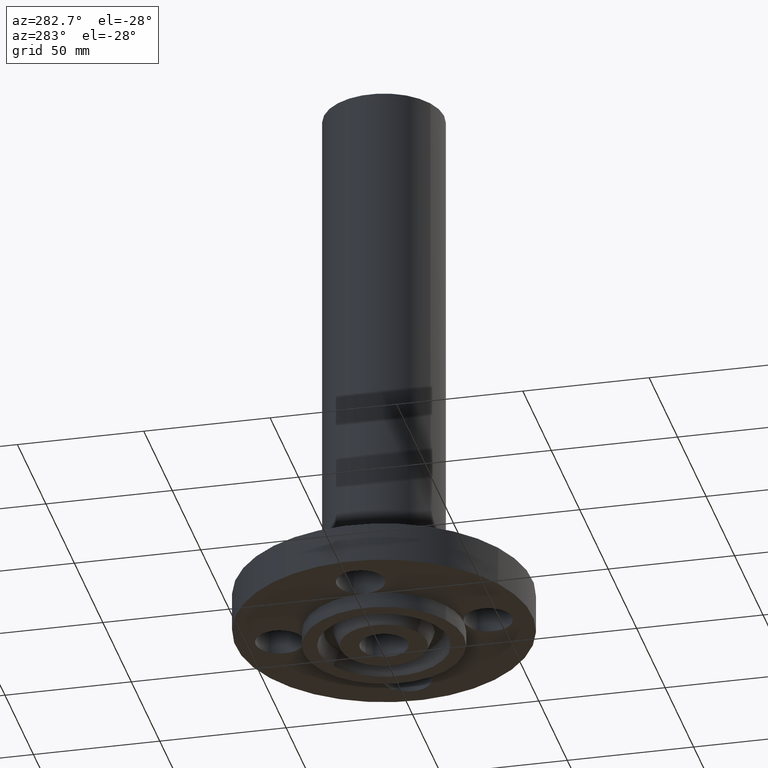
[diagram: clean part render]
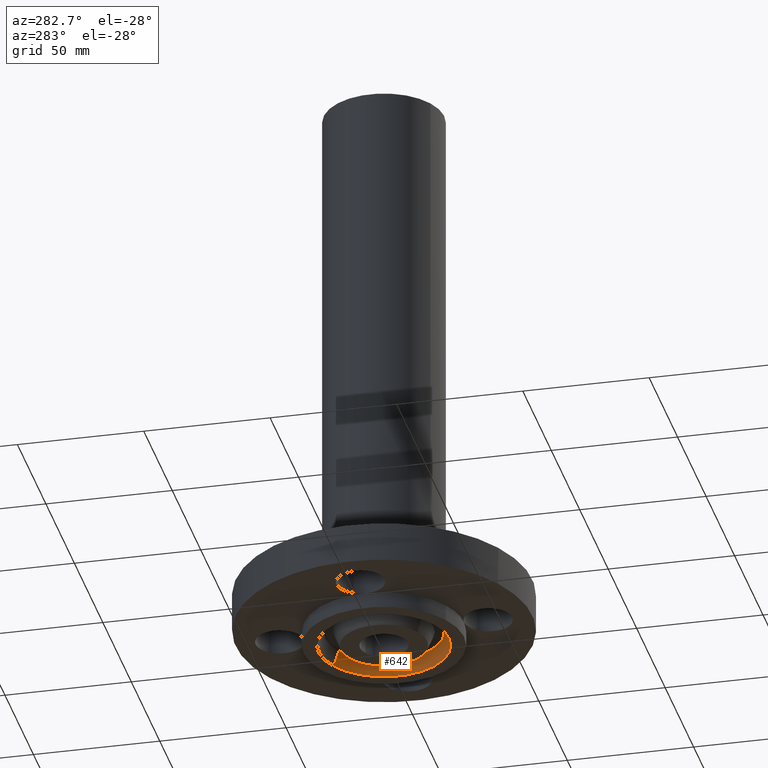
[diagram: same view with one face highlighted and labeled with its STEP entity id]
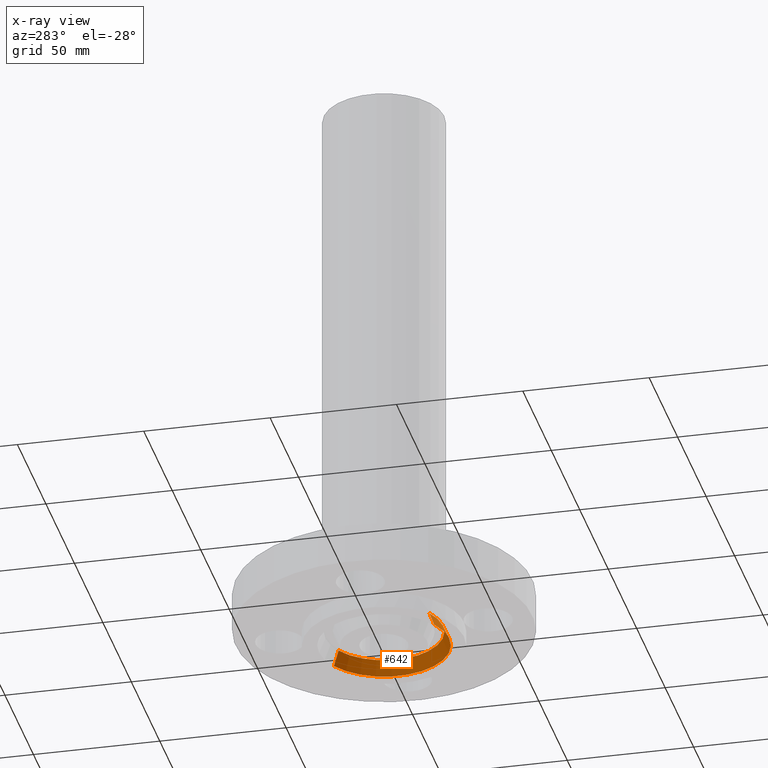
[diagram: x-ray of the same camera — body ghosted, the highlighted face saturated]
A machine part, auxiliary view. The second image highlights one B-rep face of the part: STEP entity #642.
The next image is the same camera in x-ray: the body ghosted, the highlighted face saturated — about 0% of this face is hidden behind the body in this view.
In plain terms, the highlighted conical surface has half-angle 23 deg.
Its self-contained STEP definition (entity closure, byte-faithful):
#590=AXIS2_PLACEMENT_3D('Circle Axis2P3D',#588,#589,$) ;
#603=AXIS2_PLACEMENT_3D('Cone Axis2P3D',#600,#601,#602) ;
#633=AXIS2_PLACEMENT_3D('Circle Axis2P3D',#631,#632,$) ;
#566=CARTESIAN_POINT('Vertex',(-0.440063979875,-0.80553171193,-0.0188873350169)) ;
#573=CARTESIAN_POINT('Vertex',(0.440063979875,0.80553171193,-0.0188873350169)) ;
#588=CARTESIAN_POINT('Axis2P3D Location',(0.,0.,-0.0188873350169)) ;
#600=CARTESIAN_POINT('Axis2P3D Location',(0.,0.,-0.0188873350169)) ;
#605=CARTESIAN_POINT('Line Origine',(-0.46358016355,-0.848577797407,-0.134443667509)) ;
#609=CARTESIAN_POINT('Vertex',(-0.487096347224,-0.891623882884,-0.250000000001)) ;
#616=CARTESIAN_POINT('Vertex',(0.487096347224,0.891623882884,-0.250000000001)) ;
#619=CARTESIAN_POINT('Line Origine',(0.46358016355,0.848577797407,-0.134443667509)) ;
#631=CARTESIAN_POINT('Axis2P3D Location',(0.,0.,-0.250000000001)) ;
#589=DIRECTION('Axis2P3D Direction',(0.,0.,-0.0393700787402)) ;
#601=DIRECTION('Axis2P3D Direction',(0.,0.,-0.0393700787402)) ;
#602=DIRECTION('Axis2P3D XDirection',(0.0188750212049,0.0345504945626,0.)) ;
#606=DIRECTION('Vector Direction',(-0.00737505833565,-0.0134999537303,-0.0362403485611)) ;
#620=DIRECTION('Vector Direction',(0.00737505833565,0.0134999537303,-0.0362403485611)) ;
#632=DIRECTION('Axis2P3D Direction',(0.,0.,-0.0393700787402)) ;
#607=VECTOR('Line Direction',#606,0.0393700787402) ;
#621=VECTOR('Line Direction',#620,0.0393700787402) ;
#637=ORIENTED_EDGE('',*,*,#592,.F.) ;
#638=ORIENTED_EDGE('',*,*,#623,.T.) ;
#639=ORIENTED_EDGE('',*,*,#635,.T.) ;
#640=ORIENTED_EDGE('',*,*,#611,.F.) ;
#642=ADVANCED_FACE('PartBody',(#641),#604,.F.) ;
#591=CIRCLE('generated circle',#590,0.917898494011) ;
#634=CIRCLE('generated circle',#633,1.016) ;
#604=CONICAL_SURFACE('Cone',#603,0.917898494011,0.401425727959) ;
#592=EDGE_CURVE('',#574,#567,#591,.T.) ;
#611=EDGE_CURVE('',#567,#610,#608,.T.) ;
#623=EDGE_CURVE('',#574,#617,#622,.T.) ;
#635=EDGE_CURVE('',#617,#610,#634,.T.) ;
#636=EDGE_LOOP('',(#637,#638,#639,#640)) ;
#641=FACE_OUTER_BOUND('',#636,.T.) ;
#608=LINE('Line',#605,#607) ;
#622=LINE('Line',#619,#621) ;
#567=VERTEX_POINT('',#566) ;
#574=VERTEX_POINT('',#573) ;
#610=VERTEX_POINT('',#609) ;
#617=VERTEX_POINT('',#616) ;